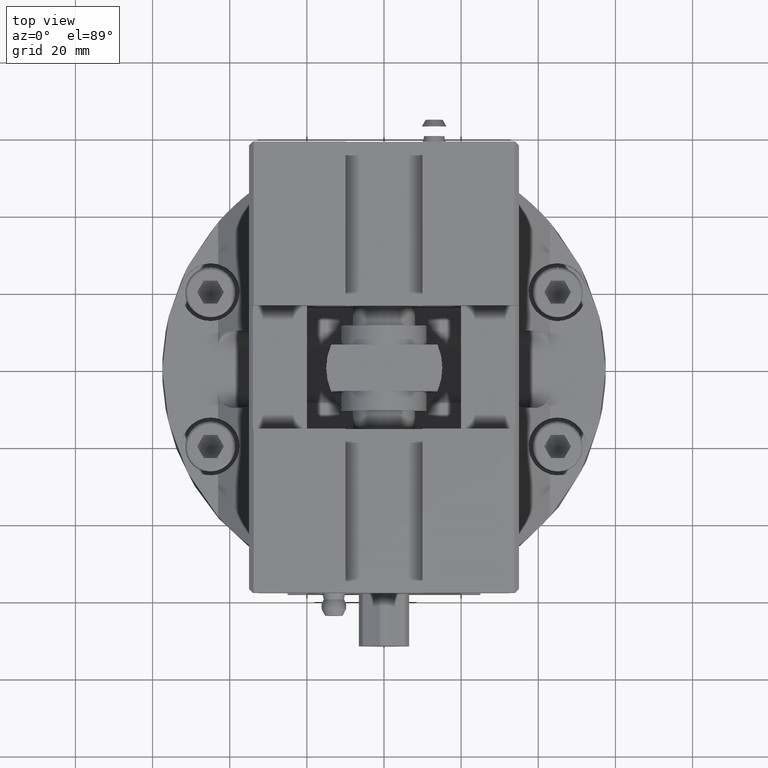
[diagram: clean part render]
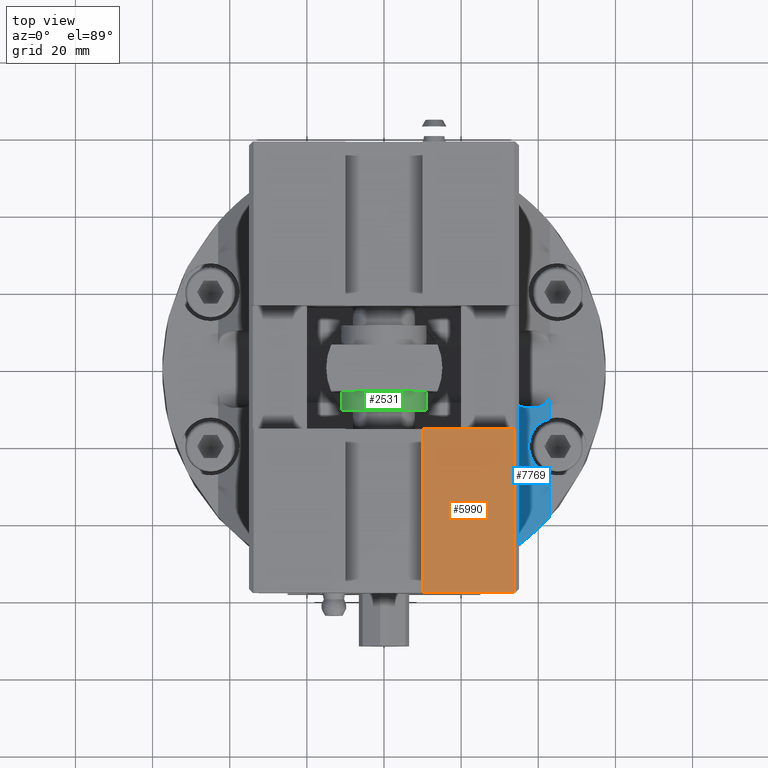
[diagram: same view with three faces highlighted in distinct colors, each labeled with its STEP entity id]
A machine part, top view with three faces highlighted in distinct colors.
Their STEP definitions:

[orange] entity #5990 — the highlighted planar face has unit normal (0, 0, 1).
#5291=CARTESIAN_POINT('',(33.802632570231395,-58.5,55.499999999999986));
#5292=VERTEX_POINT('',#5291);
#5299=CARTESIAN_POINT('',(10.000000000000055,-58.5,55.5));
#5300=VERTEX_POINT('',#5299);
#5301=CARTESIAN_POINT('',(33.802632570231395,-58.5,55.499999999999986));
#5302=DIRECTION('',(-1.0,0.0,0.0));
#5303=VECTOR('',#5302,23.802632570231339);
#5304=LINE('',#5301,#5303);
#5305=EDGE_CURVE('',#5292,#5300,#5304,.T.);
#5597=CARTESIAN_POINT('',(33.802632570231395,-15.999999999999996,55.499999999999986));
#5598=VERTEX_POINT('',#5597);
#5605=CARTESIAN_POINT('',(33.802632570231395,-58.5,55.499999999999986));
#5606=DIRECTION('',(0.0,1.0,0.0));
#5607=VECTOR('',#5606,42.5);
#5608=LINE('',#5605,#5607);
#5609=EDGE_CURVE('',#5292,#5598,#5608,.T.);
#5914=CARTESIAN_POINT('',(10.000000000000055,-15.999999999999996,55.5));
#5915=VERTEX_POINT('',#5914);
#5916=CARTESIAN_POINT('',(10.000000000000055,-16.0,55.5));
#5917=DIRECTION('',(0.0,-1.0,0.0));
#5918=VECTOR('',#5917,42.5);
#5919=LINE('',#5916,#5918);
#5920=EDGE_CURVE('',#5915,#5300,#5919,.T.);
#5974=CARTESIAN_POINT('',(35.000000000000057,-58.5,55.499999999999986));
#5975=DIRECTION('',(0.0,0.0,1.0));
#5976=DIRECTION('',(1.0,0.0,0.0));
#5977=AXIS2_PLACEMENT_3D('',#5974,#5975,#5976);
#5978=PLANE('',#5977);
#5979=ORIENTED_EDGE('',*,*,#5609,.T.);
#5980=CARTESIAN_POINT('',(33.802632570231395,-15.999999999999996,55.499999999999986));
#5981=DIRECTION('',(-1.0,0.0,0.0));
#5982=VECTOR('',#5981,23.802632570231339);
#5983=LINE('',#5980,#5982);
#5984=EDGE_CURVE('',#5598,#5915,#5983,.T.);
#5985=ORIENTED_EDGE('',*,*,#5984,.T.);
#5986=ORIENTED_EDGE('',*,*,#5920,.T.);
#5987=ORIENTED_EDGE('',*,*,#5305,.F.);
#5988=EDGE_LOOP('',(#5979,#5985,#5986,#5987));
#5989=FACE_OUTER_BOUND('',#5988,.T.);
#5990=ADVANCED_FACE('',(#5989),#5978,.T.);

[blue] entity #7769 — the highlighted planar face has unit normal (0.7071, 0, 0.7071).
#7669=CARTESIAN_POINT('',(43.0,-5.999999999999988,18.999999999999964));
#7670=VERTEX_POINT('',#7669);
#7677=CARTESIAN_POINT('',(43.0,-12.771583852599511,18.999999999999964));
#7678=VERTEX_POINT('',#7677);
#7679=CARTESIAN_POINT('',(43.0,-12.771583852599505,18.999999999999964));
#7680=DIRECTION('',(0.0,1.0,0.0));
#7681=VECTOR('',#7680,6.77158385259952);
#7682=LINE('',#7679,#7681);
#7683=EDGE_CURVE('',#7678,#7670,#7682,.T.);
#7685=CARTESIAN_POINT('',(43.0,-27.228416147400473,18.999999999999972));
#7686=VERTEX_POINT('',#7685);
#7694=CARTESIAN_POINT('',(43.0,-38.17394399325277,19.0));
#7695=VERTEX_POINT('',#7694);
#7696=CARTESIAN_POINT('',(43.0,-38.17394399325277,18.999999999999975));
#7697=DIRECTION('',(0.0,1.0,0.0));
#7698=VECTOR('',#7697,10.945527845852304);
#7699=LINE('',#7696,#7698);
#7700=EDGE_CURVE('',#7695,#7686,#7699,.T.);
#7712=CARTESIAN_POINT('',(39.0,19.810359488618332,22.999999999999972));
#7713=DIRECTION('',(0.707106781186549,2.616821E-016,0.707106781186546));
#7714=DIRECTION('',(0.707106781186546,0.0,-0.707106781186549));
#7715=AXIS2_PLACEMENT_3D('',#7712,#7713,#7714);
#7716=PLANE('',#7715);
#7717=CARTESIAN_POINT('',(45.0,-19.999999999999993,16.999999999999961));
#7718=DIRECTION('',(-0.707106781186549,-2.616821E-016,-0.707106781186546));
#7719=DIRECTION('',(0.707106781186546,-2.616821E-016,-0.707106781186549));
#7720=AXIS2_PLACEMENT_3D('',#7717,#7718,#7719);
#7721=ELLIPSE('',#7720,10.606601717798235,7.500000000000001);
#7722=EDGE_CURVE('',#7678,#7686,#7721,.F.);
#7723=ORIENTED_EDGE('',*,*,#7722,.F.);
#7724=ORIENTED_EDGE('',*,*,#7683,.T.);
#7725=CARTESIAN_POINT('',(39.000000000000021,-9.999999999999984,22.999999999999968));
#7726=VERTEX_POINT('',#7725);
#7727=CARTESIAN_POINT('',(39.000000000000014,-5.999999999999983,22.999999999999968));
#7728=DIRECTION('',(-0.707106781186549,-2.616821E-016,-0.707106781186546));
#7729=DIRECTION('',(-0.707106781186546,-7.850462E-016,0.707106781186549));
#7730=AXIS2_PLACEMENT_3D('',#7727,#7728,#7729);
#7731=ELLIPSE('',#7730,5.656854249492374,4.000000000000004);
#7732=EDGE_CURVE('',#7670,#7726,#7731,.T.);
#7733=ORIENTED_EDGE('',*,*,#7732,.T.);
#7734=CARTESIAN_POINT('',(37.000000000000014,-9.999999999999986,24.999999999999979));
#7735=VERTEX_POINT('',#7734);
#7736=CARTESIAN_POINT('',(39.000000000000021,-9.999999999999984,22.999999999999964));
#7737=DIRECTION('',(-0.707106781186546,0.0,0.707106781186549));
#7738=VECTOR('',#7737,2.828427124746205);
#7739=LINE('',#7736,#7738);
#7740=EDGE_CURVE('',#7726,#7735,#7739,.T.);
#7741=ORIENTED_EDGE('',*,*,#7740,.T.);
#7742=CARTESIAN_POINT('',(35.0,-9.46410161513773,26.999999999999993));
#7743=VERTEX_POINT('',#7742);
#7744=CARTESIAN_POINT('',(37.000000000000014,-5.999999999999996,24.999999999999979));
#7745=DIRECTION('',(-0.707106781186549,-2.616821E-016,-0.707106781186546));
#7746=DIRECTION('',(-0.707106781186546,7.850462E-016,0.707106781186549));
#7747=AXIS2_PLACEMENT_3D('',#7744,#7745,#7746);
#7748=ELLIPSE('',#7747,5.656854249492356,3.999999999999991);
#7749=EDGE_CURVE('',#7743,#7735,#7748,.F.);
#7750=ORIENTED_EDGE('',*,*,#7749,.F.);
#7751=CARTESIAN_POINT('',(35.0,-45.620718977236656,27.000000000000007));
#7752=VERTEX_POINT('',#7751);
#7753=CARTESIAN_POINT('',(35.0,-9.464101615137729,26.999999999999996));
#7754=DIRECTION('',(0.0,-1.0,0.0));
#7755=VECTOR('',#7754,36.15661736209892);
#7756=LINE('',#7753,#7755);
#7757=EDGE_CURVE('',#7743,#7752,#7756,.T.);
#7758=ORIENTED_EDGE('',*,*,#7757,.T.);
#7759=CARTESIAN_POINT('',(-1.804112E-015,2.818926E-015,62.000000000000128));
#7760=DIRECTION('',(0.707106781186549,2.616821E-016,0.707106781186546));
#7761=DIRECTION('',(-0.707106781186546,-1.638357E-016,0.707106781186549));
#7762=AXIS2_PLACEMENT_3D('',#7759,#7760,#7761);
#7763=ELLIPSE('',#7762,81.317279836453125,57.5);
#7764=EDGE_CURVE('',#7752,#7695,#7763,.T.);
#7765=ORIENTED_EDGE('',*,*,#7764,.T.);
#7766=ORIENTED_EDGE('',*,*,#7700,.T.);
#7767=EDGE_LOOP('',(#7723,#7724,#7733,#7741,#7750,#7758,#7765,#7766));
#7768=FACE_OUTER_BOUND('',#7767,.T.);
#7769=ADVANCED_FACE('',(#7768),#7716,.T.);

[green] entity #2531 — the highlighted cylindrical surface (bore or boss wall) has radius 11 mm, axis along (0, 1, -0).
#2482=CARTESIAN_POINT('',(4.017164E-014,-5.999999999999903,43.500000000000028));
#2483=VERTEX_POINT('',#2482);
#2506=CARTESIAN_POINT('',(4.163336E-014,8.499999999999957,32.499999999999986));
#2507=DIRECTION('',(1.773755E-016,1.0,-4.169204E-015));
#2508=DIRECTION('',(-1.0,0.0,0.0));
#2509=AXIS2_PLACEMENT_3D('',#2506,#2507,#2508);
#2510=CYLINDRICAL_SURFACE('',#2509,11.0);
#2511=CARTESIAN_POINT('',(-10.999999999999961,-11.000000000000046,32.500000000000064));
#2512=VERTEX_POINT('',#2511);
#2513=CARTESIAN_POINT('',(3.774758E-014,-11.000000000000046,32.500000000000064));
#2514=DIRECTION('',(0.0,1.0,0.0));
#2515=DIRECTION('',(-1.0,0.0,0.0));
#2516=AXIS2_PLACEMENT_3D('',#2513,#2514,#2515);
#2517=CIRCLE('',#2516,11.0);
#2518=EDGE_CURVE('',#2512,#2512,#2517,.T.);
#2519=ORIENTED_EDGE('',*,*,#2518,.T.);
#2520=EDGE_LOOP('',(#2519));
#2521=FACE_OUTER_BOUND('',#2520,.T.);
#2522=CARTESIAN_POINT('',(3.906142E-014,-5.999999999999936,32.500000000000043));
#2523=DIRECTION('',(0.0,-1.0,0.0));
#2524=DIRECTION('',(-1.0,0.0,0.0));
#2525=AXIS2_PLACEMENT_3D('',#2522,#2523,#2524);
#2526=CIRCLE('',#2525,11.0);
#2527=EDGE_CURVE('',#2483,#2483,#2526,.T.);
#2528=ORIENTED_EDGE('',*,*,#2527,.T.);
#2529=EDGE_LOOP('',(#2528));
#2530=FACE_BOUND('',#2529,.T.);
#2531=ADVANCED_FACE('',(#2521,#2530),#2510,.T.);